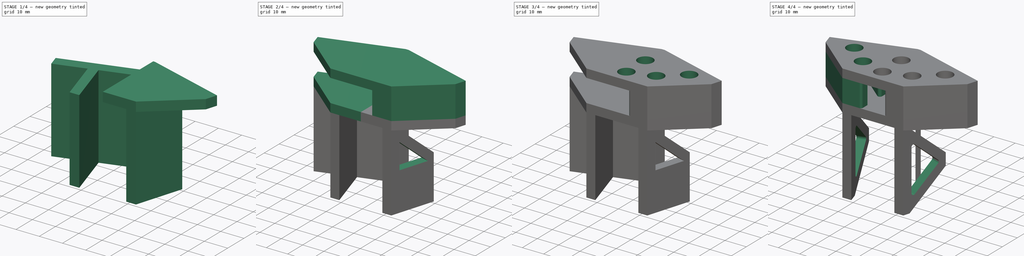
[diagram: build sequence overview — one tinted view per stage of 4, left to right]
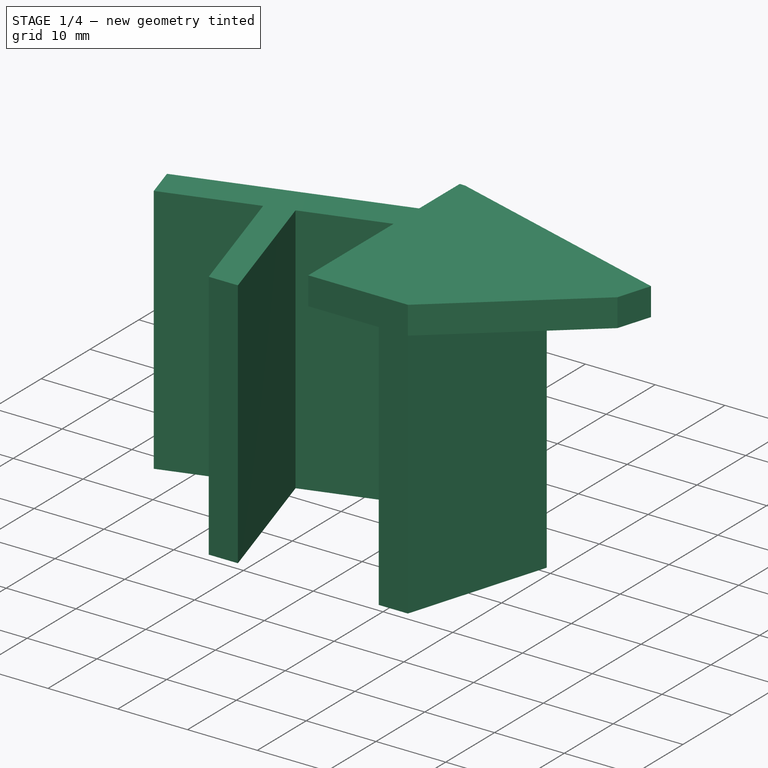
[diagram: stage 1 of 4 — iso view after this stage's code; geometry added in this stage tinted green]
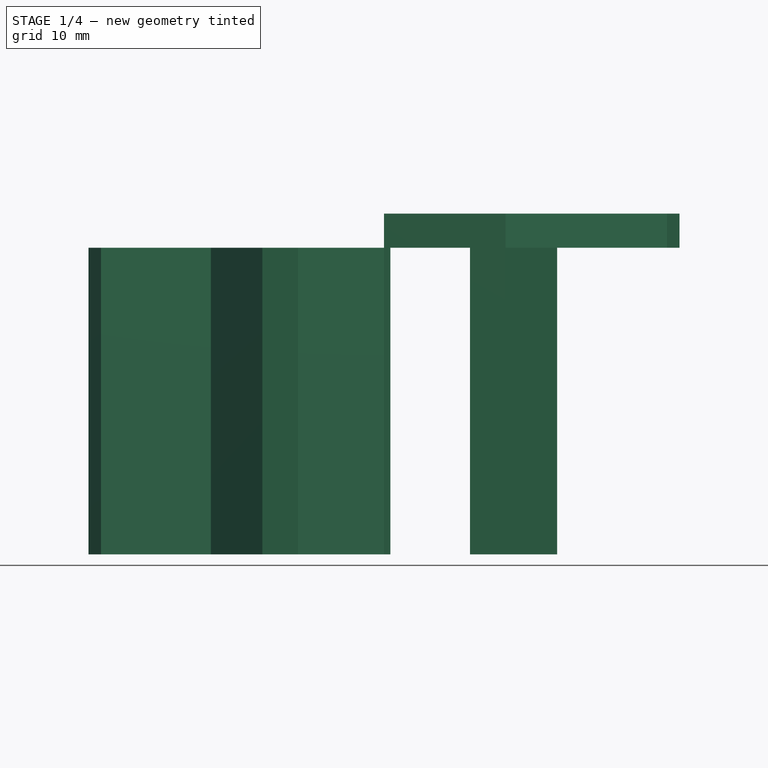
[diagram: stage 1 of 4 — front view after this stage's code; geometry added in this stage tinted green]
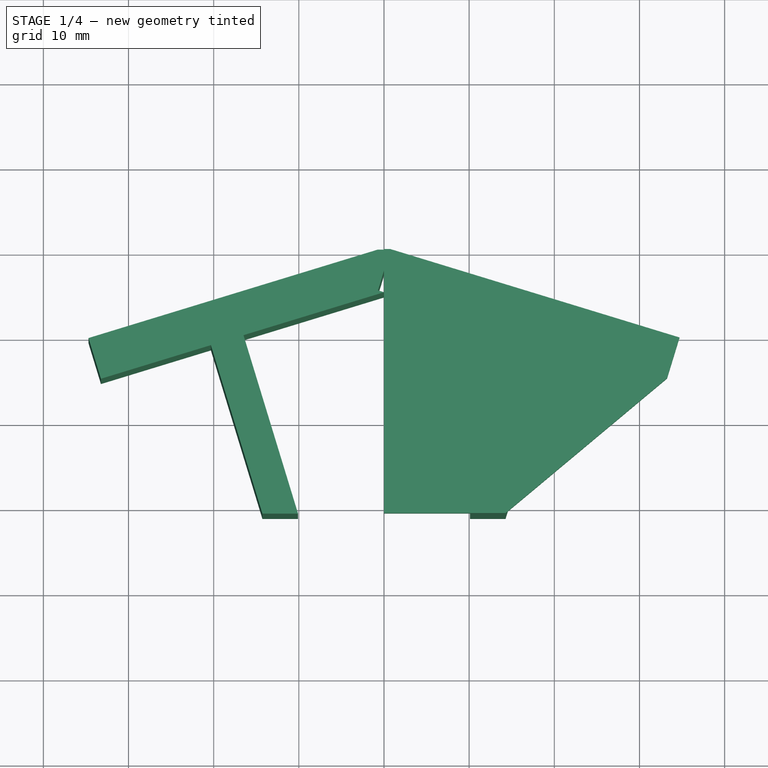
[diagram: stage 1 of 4 — top view after this stage's code; geometry added in this stage tinted green]
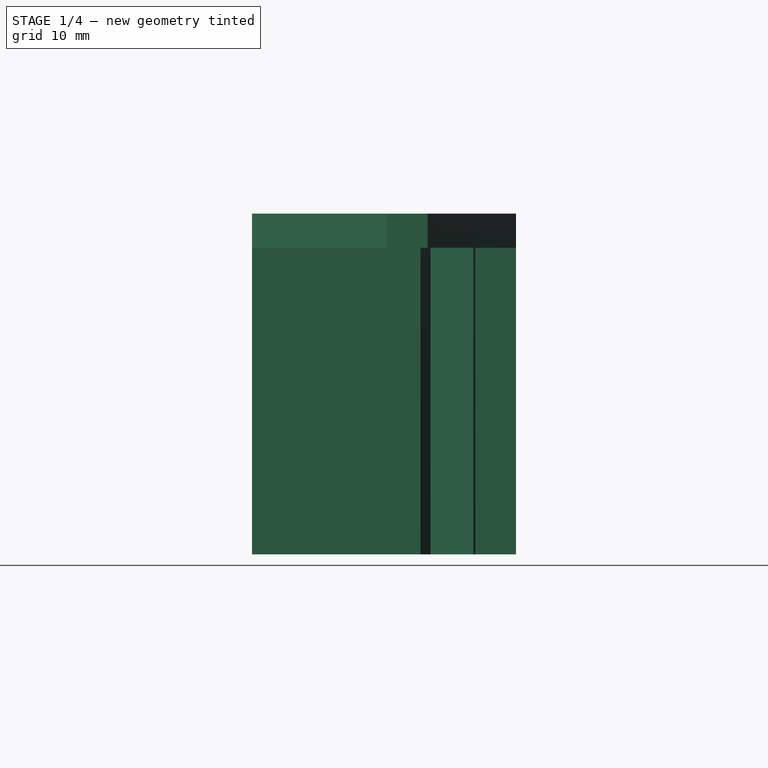
[diagram: stage 1 of 4 — right view after this stage's code; geometry added in this stage tinted green]
FCSTD DOCUMENT  (FreeCAD 0.20R)
Label: botRowRack
License: All rights reserved
LicenseURL: http://en.wikipedia.org/wiki/All_rights_reserved
objects: Sketcher::SketchObject×9, PartDesign::Mirrored×6, PartDesign::Pad×3, PartDesign::CoordinateSystem×3, PartDesign::Pocket×2, PartDesign::MultiTransform×2, PartDesign::Hole×2, PartDesign::Fillet×2, Spreadsheet::Sheet×1, PartDesign::LinearPattern×1, PartDesign::Body×1
note: 40 computed .brp shape members not serialized (recipe doc carries the construction recipe); baked Part::Feature solids carry a one-line shape summary decoded from their .brp

FEATURE [Spreadsheet::Sheet] Spreadsheet  label="props"
  cells = A1=variable; B1=unit; C1=value; D1=min value; E1=typical value; F1=max value; A2=pan angle; B2=degree; C2(panAngle)=17; D2=0; A3=cell diameter; B3=mm; C3(cellDiam)=40; A4=plate left width; B4=mm; C4(plateLeftWidth)=20; E4==cellDiam / 2 - ribThick / 2; A5=plate right (USB side) width; B5=mm; C5(plateRightWidth)=15.5; E5=15.5; A6=plate height; B6=mm; C6(plateHeight)=36; E6==cellDiam - ribThick; A7=rack thicnkess; B7=mm; C7(rackThick)=31; A8=plate thickness; B8=mm; C8(plateThick)=5; A9=rib thickness; B9=mm; C9(ribThick)=4; A11=clamp rod width; B11=mm; C11(clampWidth)==0.4 * 25.4 + 0.5; A12=clamp hole distance; B12=mm; C12(clampHoleDist)==0.5 * 25.4; A13=1/4 washer OD; B13=mm; C13(washerOd)==0.5 * 25.4 + 0.1; A14=clamp tip extent; B14=mm; C14(clampTipExt)==0.15 * 25.4 + 0.1
FEATURE [Sketcher::SketchObject] Sketch  label="plateRibBaseSk"
  FullyConstrained = true
  MapMode = 5
  Support = -> [XY_Plane]
  expr: Constraints[10] = <<props>>.plateThick
  expr: Constraints[11] = <<props>>.plateThick
  expr: Constraints[12] = 90 - <<props>>.panAngle
  expr: Constraints[24] = <<props>>.plateLeftWidth
  expr: Constraints[25] = <<props>>.plateRightWidth
  expr: Constraints[27] = <<props>>.ribThick
  expr: Constraints[28] = <<props>>.rackThick
  sketch-geometry (10):
    g0: LineSegment StartX=0 StartY=0 StartZ=0 EndX=0 EndY=-5 EndZ=0
    g1: LineSegment StartX=0 StartY=-5 StartZ=0 EndX=16.4989 EndY=-10.0442 EndZ=0
    g2: LineSegment StartX=33.2342 StartY=-15.1607 StartZ=0 EndX=34.6961 EndY=-10.3792 EndZ=0
    g3: LineSegment StartX=34.6961 StartY=-10.3792 StartZ=0 EndX=0.747255 EndY=0 EndZ=0
    g4: LineSegment StartX=0.747255 StartY=0 StartZ=0 EndX=0 EndY=0 EndZ=0
    g5: LineSegment StartX=16.4989 StartY=-10.0442 StartZ=0 EndX=10.0921 EndY=-31 EndZ=0
    g6: LineSegment StartX=10.0921 StartY=-31 StartZ=0 EndX=14.2748 EndY=-31 EndZ=0
    g7: LineSegment StartX=14.2748 StartY=-31 StartZ=0 EndX=20.3241 EndY=-11.2137 EndZ=0
    g8: LineSegment StartX=20.3241 StartY=-11.2137 StartZ=0 EndX=33.2342 EndY=-15.1607 EndZ=0
    g9: LineSegment StartX=0 StartY=-70.8502 StartZ=0 EndX=19.8734 EndY=-5.84743 EndZ=0
  constraints (29):
    c: Coincident(g-1,g0)
    c: Coincident(g0,g1)
    c: Coincident(g8,g2)
    c: Coincident(g2,g3)
    c: Coincident(g3,g4)
    c: Coincident(g4,g0)
    c: Horizontal(g4)
    c: Vertical(g0)
    c: Perpendicular(g1,g2)
    c: Parallel(g3,g1)
    c: Distance(g0) = 5
    c: Distance(g2) = 5
    c: Angle(g-2,g3) = 1.27409
    c: Coincident(g5,g6)
    c: Horizontal(g6)
    c: Coincident(g6,g7)
    c: Coincident(g1,g5)
    c: Coincident(g8,g7)
    c: Parallel(g8,g3)
    c: Perpendicular(g1,g5)
    c: Perpendicular(g8,g7)
    c: PointOnObject(g9,g-2)
    c: PointOnObject(g9,g3)
    c: Perpendicular(g3,g9)
    c: Distance(g3,g9) = 20
    c: Distance(g9,g2) = 15.5
    c: Symmetric(g1,g7,g9)
    c: Distance(g1,g7) = 4
    c: DistanceY(g5,g0) = 31
FEATURE [PartDesign::Pad] Pad  label="plateRibBase"
  Direction = (0,0,1)
  Length = 36
  Length2 = 10
  Midplane = true
  Profile = -> Sketch
  ReferenceAxis = -> Sketch [N_Axis]
  Type = 0
  expr: Length = <<props>>.plateHeight
FEATURE [Sketcher::SketchObject] Sketch001  label="plateDatum1Sk"
  ExternalGeometry = -> [Pad]
  FullyConstrained = true
  MapMode = 5
  Placement = pos=(0.0638763,0.20893,0) rot=(0.105093,0.703191,0.703191;2.93218rad)
  Support = -> [Pad]
  expr: Constraints[6] = <<props>>.plateLeftWidth
  sketch-geometry (2):
    g0: LineSegment StartX=-20.7146 StartY=0 StartZ=0 EndX=-30.7146 EndY=0 EndZ=0
    g1: LineSegment StartX=-20.7146 StartY=0 StartZ=0 EndX=-20.7146 EndY=-10 EndZ=0
  constraints (8):
    c: PointOnObject(g0,g-1)
    c: Horizontal(g0)
    c: Coincident(g1,g0)
    c: Vertical(g1)
    c: Distance(g0) = 10
    c: Distance(g1) = 10
    c: Distance(g0,g-3) = 20
    c: DistanceX(g-2,g0) = -20.7146  'plateCenterYaxisDiff'
FEATURE [PartDesign::CoordinateSystem] plateLCS1
  AttacherType = Attacher::AttachEngine3D
  MapMode = 49
  Placement = pos=(19.8734,-5.84743,0) rot=(-0.978386,0.146221,-0.146221;1.59265rad)
  Support = -> [Sketch001]
FEATURE [Sketcher::SketchObject] Sketch002  label="roofBaseSk"
  ExternalGeometry = -> [Pad]
  FullyConstrained = true
  MapMode = 5
  Placement = pos=(0,0,18) rot=(0,0,1;0rad)
  Support = -> [Pad]
  sketch-geometry (6):
    g0: LineSegment StartX=14.2748 StartY=-31 StartZ=0 EndX=33.2342 EndY=-15.1607 EndZ=0
    g1: LineSegment StartX=33.2342 StartY=-15.1607 StartZ=0 EndX=34.6961 EndY=-10.3792 EndZ=0
    g2: LineSegment StartX=34.6961 StartY=-10.3792 StartZ=0 EndX=0.747255 EndY=0 EndZ=0
    g3: LineSegment StartX=0.747255 StartY=0 StartZ=0 EndX=0 EndY=0 EndZ=0
    g4: LineSegment StartX=0 StartY=0 StartZ=0 EndX=0 EndY=-31 EndZ=0
    g5: LineSegment StartX=0 StartY=-31 StartZ=0 EndX=14.2748 EndY=-31 EndZ=0
  constraints (13):
    c: Coincident(g0,g-6)
    c: Coincident(g0,g1)
    c: Coincident(g1,g-6)
    c: Coincident(g1,g2)
    c: Coincident(g2,g-3)
    c: Coincident(g2,g3)
    c: Coincident(g3,g4)
    c: PointOnObject(g4,g-2)
    c: Coincident(g4,g5)
    c: Coincident(g5,g0)
    c: Horizontal(g5)
    c: Coincident(g0,g-5)
    c: Coincident(g3,g-4)
FEATURE [Sketcher::SketchObject] Sketch003  label="plateSlotSk"
  ExternalGeometry = -> [Pad]
  FullyConstrained = true
  MapMode = 5
  Placement = pos=(0.0638763,0.20893,0) rot=(0.105093,0.703191,0.703191;2.93218rad)
  Support = -> [Pad]
  expr: Constraints[8] = <<props>>.plateLeftWidth + <<props>>.plateRightWidth
  expr: Constraints[9] = <<props>>.plateHeight
  sketch-geometry (4):
    g0: LineSegment StartX=-36.2146 StartY=-18 StartZ=0 EndX=-0.714604 EndY=-18 EndZ=0
    g1: LineSegment StartX=-0.714604 StartY=-18 StartZ=0 EndX=-0.714604 EndY=18 EndZ=0
    g2: LineSegment StartX=-0.714604 StartY=18 StartZ=0 EndX=-36.2146 EndY=18 EndZ=0
    g3: LineSegment StartX=-36.2146 StartY=18 StartZ=0 EndX=-36.2146 EndY=-18 EndZ=0
  constraints (11):
    c: Coincident(g0,g1)
    c: Coincident(g1,g2)
    c: Coincident(g2,g3)
    c: Coincident(g3,g0)
    c: Horizontal(g0)
    c: Horizontal(g2)
    c: Vertical(g3)
    c: Symmetric(g1,g0,g-1)
    c: Distance(g2) = 35.5
    c: Distance(g3) = 36
    c: PointOnObject(g1,g-3)
FEATURE [PartDesign::Mirrored] Mirrored  label="baseMirror"
  BaseFeature = -> Pad
  MirrorPlane = -> YZ_Plane
  Originals = -> [Pad]
FEATURE [PartDesign::Pad] Pad001  label="roofBase"
  BaseFeature = -> Mirrored
  Direction = (0,0,1)
  Length = 4
  Length2 = 10
  Profile = -> Sketch002
  ReferenceAxis = -> Sketch002 [N_Axis]
  Type = 0
  expr: Length = <<props>>.ribThick
FEATURE [PartDesign::Pocket] Pocket  label="plateSlot"
  BaseFeature = -> Pad001
  Direction = (-0.292372,-0.956305,0)
  Length = 5
  Length2 = 5
  Profile = -> Sketch003
  ReferenceAxis = -> Sketch003 [N_Axis]
  Type = 0
  expr: Length = <<props>>.plateThick
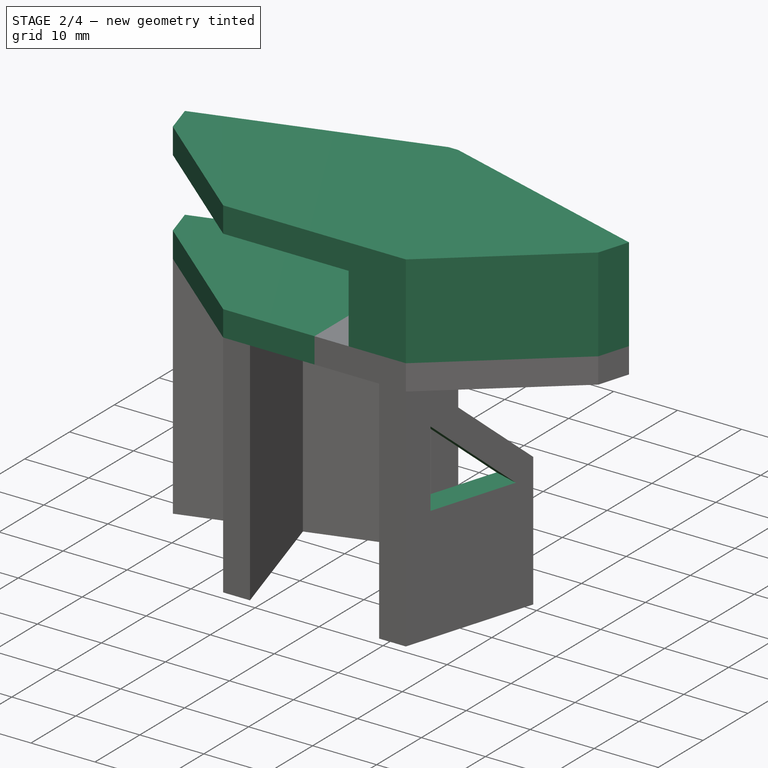
[diagram: stage 2 of 4 — iso view after this stage's code; geometry added in this stage tinted green]
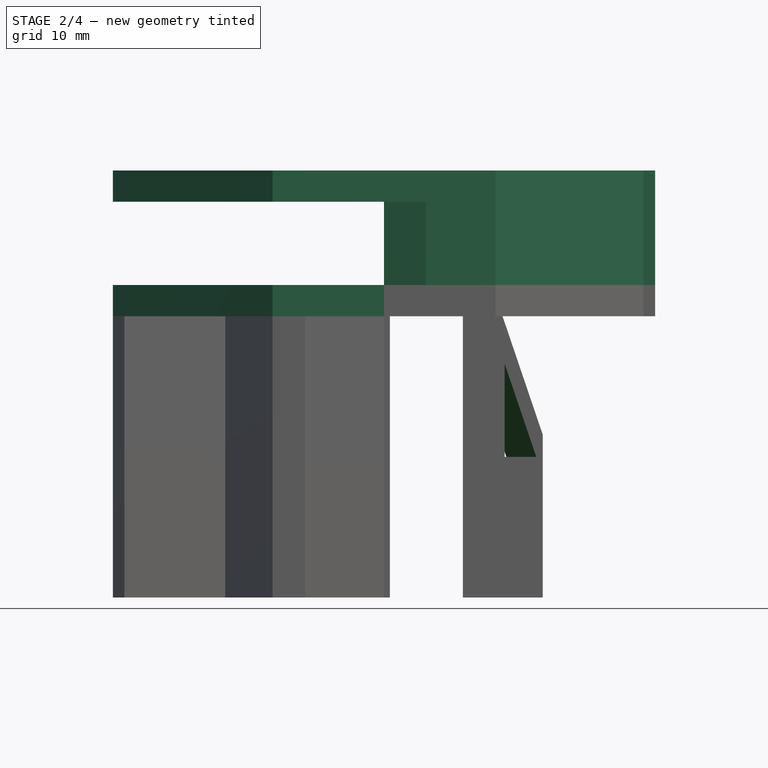
[diagram: stage 2 of 4 — front view after this stage's code; geometry added in this stage tinted green]
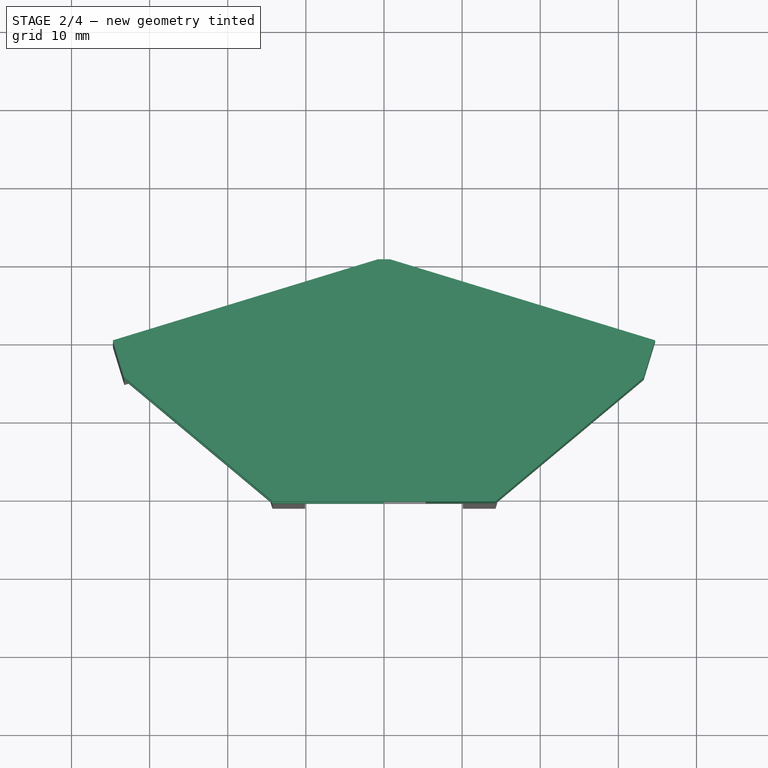
[diagram: stage 2 of 4 — top view after this stage's code; geometry added in this stage tinted green]
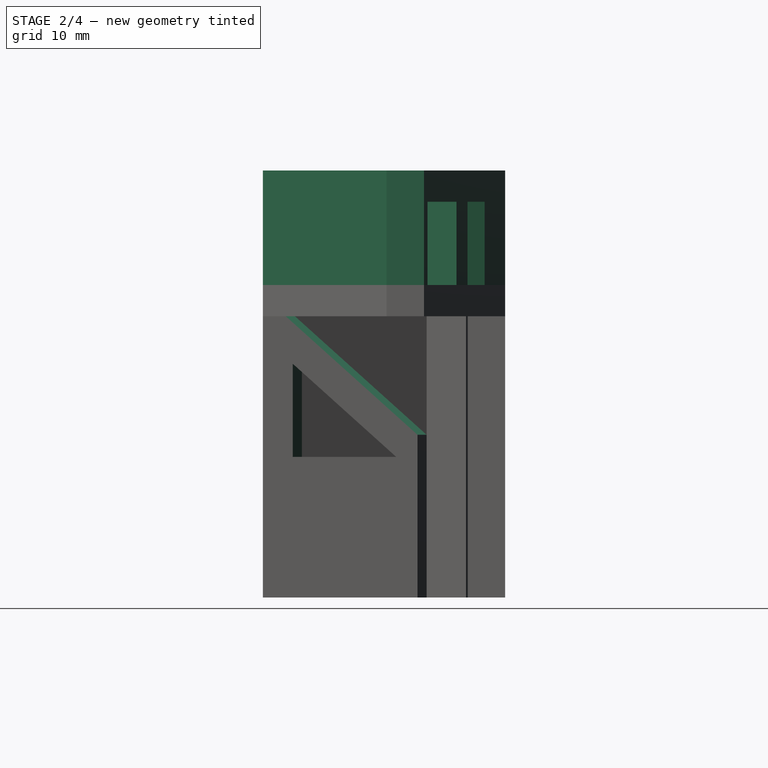
[diagram: stage 2 of 4 — right view after this stage's code; geometry added in this stage tinted green]
FEATURE [Sketcher::SketchObject] Sketch004  label="ribLightSk"
  ExternalGeometry = -> [Pocket,Pad]
  FullyConstrained = true
  MapMode = 5
  Placement = pos=(21.7221,-6.64111,0) rot=(0.690875,0.51122,0.51122;1.93244rad)
  Support = -> [Pad]
  expr: Constraints[10] = <<props>>.ribThick / 2
  expr: Constraints[16] = <<props>>.ribThick / sqrt(2)
  expr: Constraints[19] = <<props>>.ribThick
  expr: Constraints[8] = <<props>>.ribThick / 2
  sketch-geometry (7):
    g0: LineSegment StartX=-25.4719 StartY=18 StartZ=0 EndX=-4.56139 EndY=0 EndZ=0
    g1: LineSegment StartX=-4.78152 StartY=18 StartZ=0 EndX=-22.4063 EndY=18 EndZ=0
    g2: LineSegment StartX=-22.4063 StartY=18 StartZ=0 EndX=-4.78152 EndY=2.82843 EndZ=0
    g3: LineSegment StartX=-4.78152 StartY=2.82843 StartZ=0 EndX=-4.78152 EndY=18 EndZ=0
    g4: LineSegment StartX=-21.4719 StartY=0 StartZ=0 EndX=-21.4719 EndY=11.9178 EndZ=0
    g5: LineSegment StartX=-21.4719 StartY=11.9178 StartZ=0 EndX=-7.62703 EndY=0 EndZ=0
    g6: LineSegment StartX=-21.4719 StartY=0 StartZ=0 EndX=-7.62703 EndY=0 EndZ=0
  constraints (20):
    c: PointOnObject(g0,g-1)
    c: Horizontal(g1)
    c: Coincident(g1,g2)
    c: Coincident(g2,g3)
    c: Coincident(g3,g1)
    c: Parallel(g2,g0)
    c: Vertical(g4)
    c: Coincident(g4,g5)
    c: Distance(g2,g0) = 2
    c: Parallel(g5,g0)
    c: Distance(g5,g0) = 2
    c: PointOnObject(g5,g-1)
    c: Coincident(g6,g4)
    c: Coincident(g6,g5)
    c: Horizontal(g6)
    c: Vertical(g3)
    c: DistanceY(g-1,g2) = 2.82843
    c: Coincident(g0,g-4)
    c: Coincident(g1,g-5)
    c: Distance(g4,g-4) = 4
FEATURE [PartDesign::Pocket] Pocket001  label="ribLight"
  BaseFeature = -> Pocket
  Direction = (-0.956305,0.292372,0)
  Length = 5
  Length2 = 5
  Profile = -> Sketch004
  ReferenceAxis = -> Sketch004 [N_Axis]
  Type = 2
FEATURE [PartDesign::CoordinateSystem] rowLCS
  AttacherType = Attacher::AttachEngine3D
  Support = -> [Origin]
FEATURE [Sketcher::SketchObject] Sketch007  label="plateDatum2Sk"
  FullyConstrained = true
  MapMode = 5
  Placement = pos=(-0.0638763,0.20893,0) rot=(-0.105093,0.703191,0.703191;3.35101rad)
  Support = -> [Mirrored]
  expr: Constraints[6] = -<<plateDatum1Sk>>.Constraints.plateCenterYaxisDiff
  sketch-geometry (2):
    g0: LineSegment StartX=20.7146 StartY=0 StartZ=0 EndX=30.7146 EndY=0 EndZ=0
    g1: LineSegment StartX=20.7146 StartY=0 StartZ=0 EndX=20.7146 EndY=10 EndZ=0
  constraints (7):
    c: PointOnObject(g0,g-1)
    c: PointOnObject(g0,g-1)
    c: Coincident(g1,g0)
    c: Vertical(g1)
    c: Distance(g0) = 10
    c: Distance(g1) = 10
    c: DistanceX(g-2,g0) = 20.7146
FEATURE [PartDesign::CoordinateSystem] plateLCS2
  AttacherType = Attacher::AttachEngine3D
  MapMode = 49
  Placement = pos=(-19.8734,-5.84743,6e-16) rot=(-0.105093,0.703191,0.703191;3.35101rad)
  Support = -> [Sketch007]
FEATURE [Sketcher::SketchObject] Sketch008  label="clamRibSk"
  ExternalGeometry = -> [Pad001]
  FullyConstrained = true
  MapMode = 5
  Placement = pos=(0,0,22) rot=(0,0,1;0rad)
  Support = -> [Pad001]
  expr: Constraints[11] = <<props>>.ribThick
  expr: Constraints[12] = <<props>>.clampWidth / 2
  expr: Constraints[22] = <<props>>.plateThick
  expr: Constraints[23] = <<props>>.clampWidth
  expr: Constraints[33] = <<props>>.ribThick
  expr: Constraints[34] = <<props>>.ribThick
  expr: Constraints[41] = <<props>>.ribThick
  sketch-geometry (16):
    g0: LineSegment StartX=34.6961 StartY=-10.3792 StartZ=0 EndX=33.2485 EndY=-9.93661 EndZ=0
    g1: LineSegment StartX=33.2485 StartY=-9.93661 StartZ=0 EndX=12.8238 EndY=-27 EndZ=0
    g2: LineSegment StartX=34.6961 StartY=-10.3792 StartZ=0 EndX=33.2342 EndY=-15.1607 EndZ=0
    g3: LineSegment StartX=33.2342 StartY=-15.1607 StartZ=0 EndX=14.2748 EndY=-31 EndZ=0
    g4: LineSegment StartX=14.2748 StartY=-31 StartZ=0 EndX=5.33 EndY=-31 EndZ=0
    g5: LineSegment StartX=5.33 StartY=-31 StartZ=0 EndX=5.33 EndY=-27 EndZ=0
    g6: LineSegment StartX=5.33 StartY=-6.62954 StartZ=0 EndX=0 EndY=-5 EndZ=0
    g7: LineSegment StartX=0 StartY=-5 StartZ=0 EndX=0 EndY=0 EndZ=0
    g8: LineSegment StartX=0 StartY=0 StartZ=0 EndX=0.747255 EndY=0 EndZ=0
    g9: LineSegment StartX=0.747255 StartY=0 StartZ=0 EndX=9.33 EndY=-2.62401 EndZ=0
    g10: LineSegment StartX=21.0762 StartY=-6.21518 StartZ=0 EndX=5.33 EndY=-19.37 EndZ=0
    g11: LineSegment StartX=9.33 StartY=-2.62401 StartZ=0 EndX=9.33 EndY=-10.8161 EndZ=0
    g12: LineSegment StartX=9.33 StartY=-10.8161 StartZ=0 EndX=16.5087 EndY=-4.81876 EndZ=0
    g13: LineSegment StartX=16.5087 StartY=-4.81876 StartZ=0 EndX=21.0762 EndY=-6.21518 EndZ=0
    g14: LineSegment StartX=12.8238 StartY=-27 StartZ=0 EndX=5.33 EndY=-27 EndZ=0
    g15: LineSegment StartX=5.33 StartY=-19.37 StartZ=0 EndX=5.33 EndY=-6.62954 EndZ=0
  constraints (43):
    c: PointOnObject(g0,g-3)
    c: Coincident(g0,g1)
    c: Coincident(g2,g0)
    c: Coincident(g2,g3)
    c: Coincident(g3,g-4)
    c: Coincident(g3,g4)
    c: Horizontal(g4)
    c: Coincident(g4,g5)
    c: Vertical(g5)
    c: Parallel(g1,g3)
    c: Coincident(g2,g-5)
    c: Distance(g2,g1) = 4
    c: DistanceX(g-2,g4) = 5.33
    c: Coincident(g15,g6)
    c: PointOnObject(g6,g-2)
    c: Coincident(g6,g7)
    c: Coincident(g7,g-1)
    c: Coincident(g7,g8)
    c: Coincident(g8,g-3)
    c: Coincident(g8,g9)
    c: PointOnObject(g13,g-3)
    c: Parallel(g6,g-3)
    c: Distance(g6,g-3) = 5
    c: Distance(g13,g1) = 10.66
    c: Coincident(g10,g13)
    c: Parallel(g10,g1)
    c: Vertical(g11)
    c: Coincident(g11,g12)
    c: Parallel(g12,g10)
    c: Coincident(g9,g11)
    c: Coincident(g13,g12)
    c: PointOnObject(g9,g-3)
    c: PointOnObject(g12,g-3)
    c: DistanceX(g15,g9) = 4
    c: Distance(g12,g10) = 4
    c: Coincident(g14,g1)
    c: Horizontal(g14)
    c: Coincident(g5,g14)
    c: Coincident(g15,g10)
    c: Vertical(g15)
    c: Vertical(g10,g4)
    c: Distance(g5) = 4
    c: Coincident(g0,g-5)
FEATURE [PartDesign::Pad] Pad002  label="clampRib"
  BaseFeature = -> Pocket001
  Direction = (0,0,1)
  Length = 10.66
  Length2 = 10
  Profile = -> Sketch008
  ReferenceAxis = -> Sketch008 [N_Axis]
  Type = 0
  expr: Length = <<props>>.clampWidth
FEATURE [PartDesign::Mirrored] Mirrored001
  MirrorPlane = -> YZ_Plane
FEATURE [PartDesign::LinearPattern] LinearPattern
  Direction = -> Z_Axis
  Length = 14.66
  Occurrences = 2
  expr: Length = <<props>>.clampWidth + <<props>>.ribThick
FEATURE [PartDesign::MultiTransform] MultiTransform  label="roofMulti"
  BaseFeature = -> Pad002
  Originals = -> [Pad001]
  Transformations = -> [Mirrored001,LinearPattern]
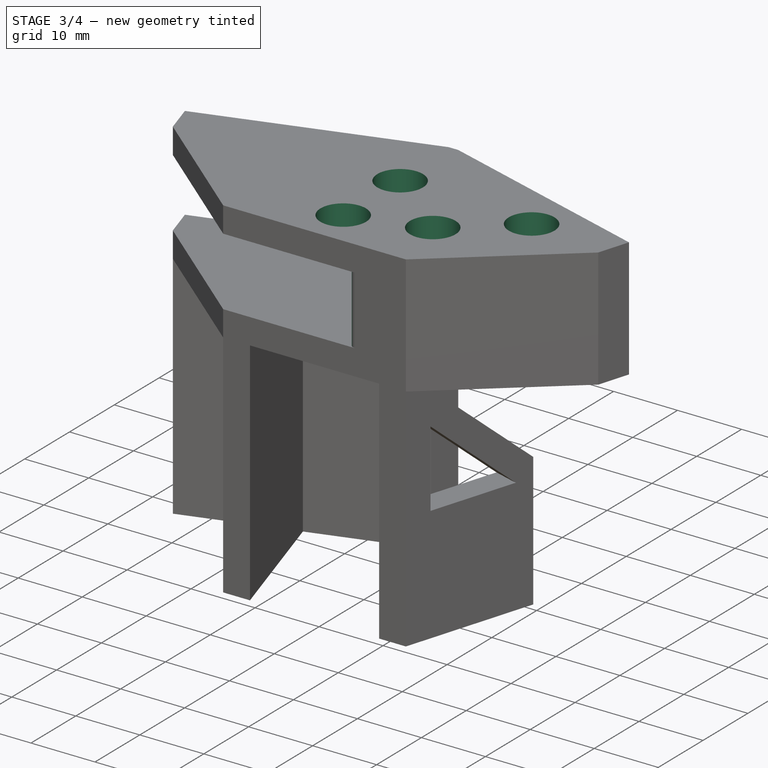
[diagram: stage 3 of 4 — iso view after this stage's code; geometry added in this stage tinted green]
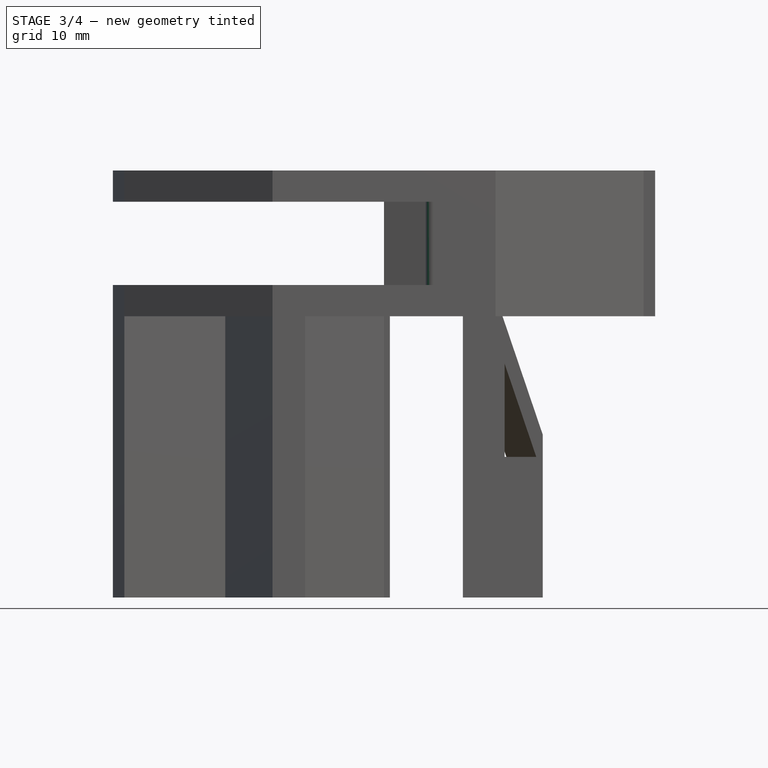
[diagram: stage 3 of 4 — front view after this stage's code; geometry added in this stage tinted green]
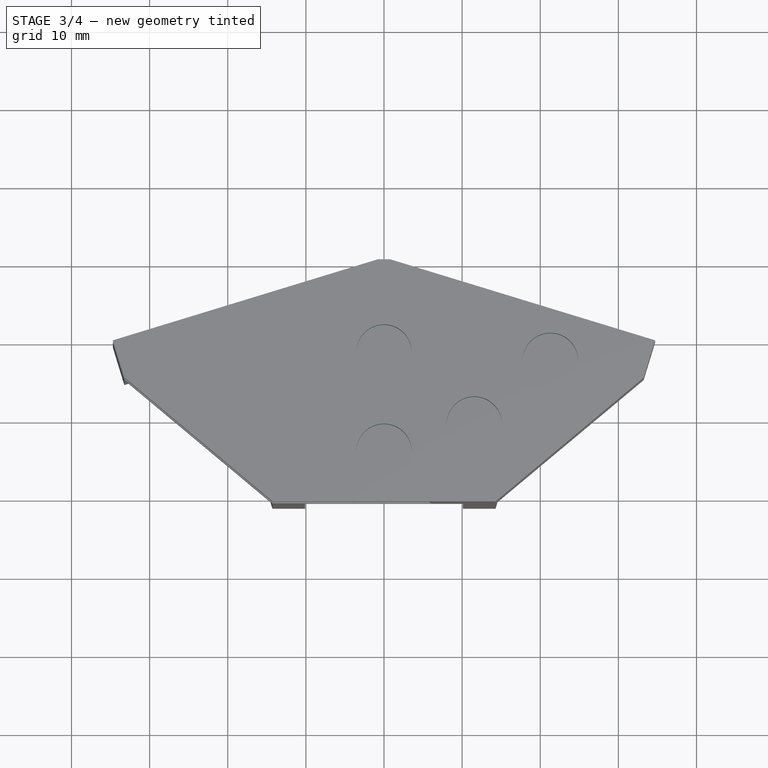
[diagram: stage 3 of 4 — top view after this stage's code; geometry added in this stage tinted green]
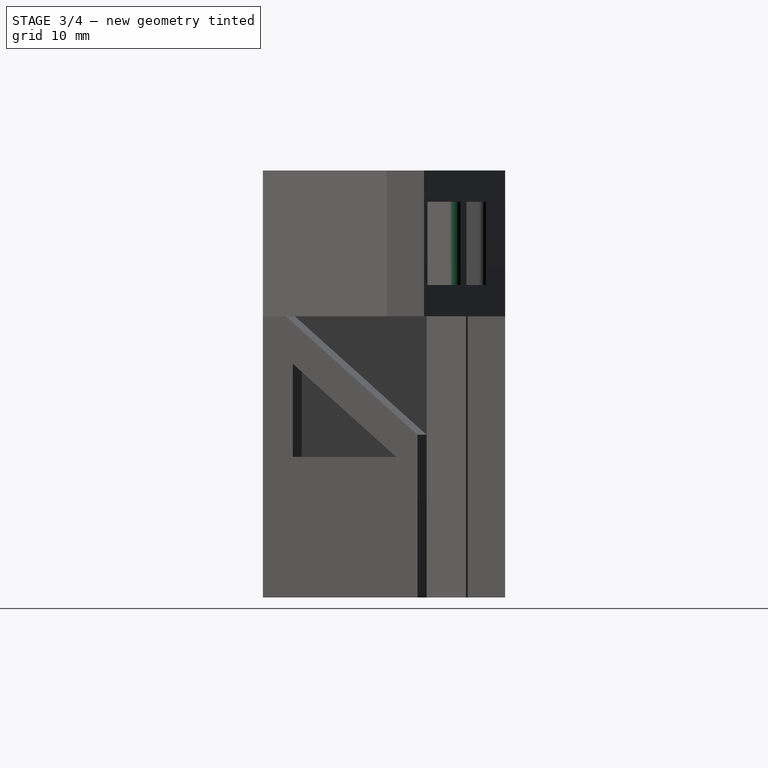
[diagram: stage 3 of 4 — right view after this stage's code; geometry added in this stage tinted green]
FEATURE [Sketcher::SketchObject] Sketch009  label="centerClampHoleSk"
  ExternalGeometry = -> [MultiTransform]
  FullyConstrained = true
  MapMode = 5
  Placement = pos=(0,0,36.66) rot=(0,0,1;0rad)
  Support = -> [MultiTransform]
  expr: Constraints[10] = <<props>>.washerOd / 2
  expr: Constraints[2] = <<props>>.clampHoleDist
  sketch-geometry (4):
    g0: Circle CenterX=0 CenterY=-11.9 CenterZ=0 NormalX=0 NormalY=0 NormalZ=1 AngleXU=0 Radius=1
    g1: Circle CenterX=0 CenterY=-24.6 CenterZ=0 NormalX=0 NormalY=0 NormalZ=1 AngleXU=0 Radius=1
    g2: LineSegment StartX=0 StartY=-11.9 StartZ=0 EndX=1.92922 EndY=-5.58982 EndZ=0
    g3: LineSegment StartX=0 StartY=-24.6 StartZ=0 EndX=-4.9e-15 EndY=-31 EndZ=0
  constraints (12):
    c: PointOnObject(g0,g-2)
    c: PointOnObject(g1,g-2)
    c: Distance(g0,g1) = 12.7
    c: Diameter(g1) = 2
    c: Diameter(g0) = 2
    c: Coincident(g2,g0)
    c: PointOnObject(g2,g-3)
    c: Coincident(g3,g1)
    c: Coincident(g3,g-4)
    c: Perpendicular(g-3,g2)
    c: Distance(g3) = 6.4
    c: Distance(g2) = 6.5985
FEATURE [Sketcher::SketchObject] Sketch010  label="sideClampHoleSk"
  ExternalGeometry = -> [MultiTransform]
  FullyConstrained = true
  MapMode = 5
  Placement = pos=(0,0,36.66) rot=(0,0,1;0rad)
  Support = -> [MultiTransform]
  expr: Constraints[0] = <<props>>.clampWidth / 2
  expr: Constraints[1] = <<props>>.clampWidth / 2
  expr: Constraints[2] = <<props>>.clampHoleDist
  expr: Constraints[3] = <<props>>.washerOd / 2
  sketch-geometry (2):
    g0: Circle CenterX=11.5514 CenterY=-21.1177 CenterZ=0 NormalX=0 NormalY=0 NormalZ=1 AngleXU=0 Radius=1
    g1: Circle CenterX=21.2977 CenterY=-12.9753 CenterZ=0 NormalX=0 NormalY=0 NormalZ=1 AngleXU=0 Radius=1
  constraints (7):
    c: Distance(g1,g-3) = 5.33
    c: Distance(g0,g-3) = 5.33
    c: Distance(g0,g1) = 12.7
    c: Distance(g1,g-4) = 6.4
    c: DistanceX(g-2,g0) = 11.5514
    c: Diameter(g0) = 2
    c: Diameter(g1) = 2
FEATURE [PartDesign::Hole] Hole  label="centerClampHole"
  BaseFeature = -> MultiTransform
  CustomThreadClearance = 0
  Depth = 4
  DepthType = 0
  Diameter = 7.1
  DrillForDepth = false
  DrillPoint = 1
  DrillPointAngle = 118
  HoleCutCountersinkAngle = 90
  HoleCutCustomValues = false
  HoleCutDepth = 0
  HoleCutDiameter = 6.1
  HoleCutType = 0
  ModelThread = false
  Profile = -> Sketch009
  Tapered = false
  TaperedAngle = 90
  ThreadClass = 0
  ThreadDepth = 4
  ThreadDepthType = 0
  ThreadDirection = 0
  ThreadFit = 0
  ThreadSize = 10
  ThreadType = 4
  Threaded = false
  UseCustomThreadClearance = false
  expr: Depth = <<props>>.ribThick
FEATURE [PartDesign::Hole] Hole001  label="sideClampHole"
  BaseFeature = -> Hole
  CustomThreadClearance = 0
  Depth = 4
  DepthType = 0
  Diameter = 7.1
  DrillForDepth = false
  DrillPoint = 1
  DrillPointAngle = 118
  HoleCutCountersinkAngle = 90
  HoleCutCustomValues = false
  HoleCutDepth = 0
  HoleCutDiameter = 6.1
  HoleCutType = 0
  ModelThread = false
  Profile = -> Sketch010
  Tapered = false
  TaperedAngle = 90
  ThreadClass = 0
  ThreadDepth = 4
  ThreadDepthType = 0
  ThreadDirection = 0
  ThreadFit = 0
  ThreadSize = 10
  ThreadType = 4
  Threaded = false
  UseCustomThreadClearance = false
  expr: Depth = <<props>>.ribThick
FEATURE [PartDesign::Fillet] Fillet  label="clampRibFillet"
  Base = -> Hole001 [Edge117,Edge157,Edge116,Edge122,Edge130,Edge97]
  BaseFeature = -> Hole001
  Radius = 1
  SupportTransform = false
  UseAllEdges = false
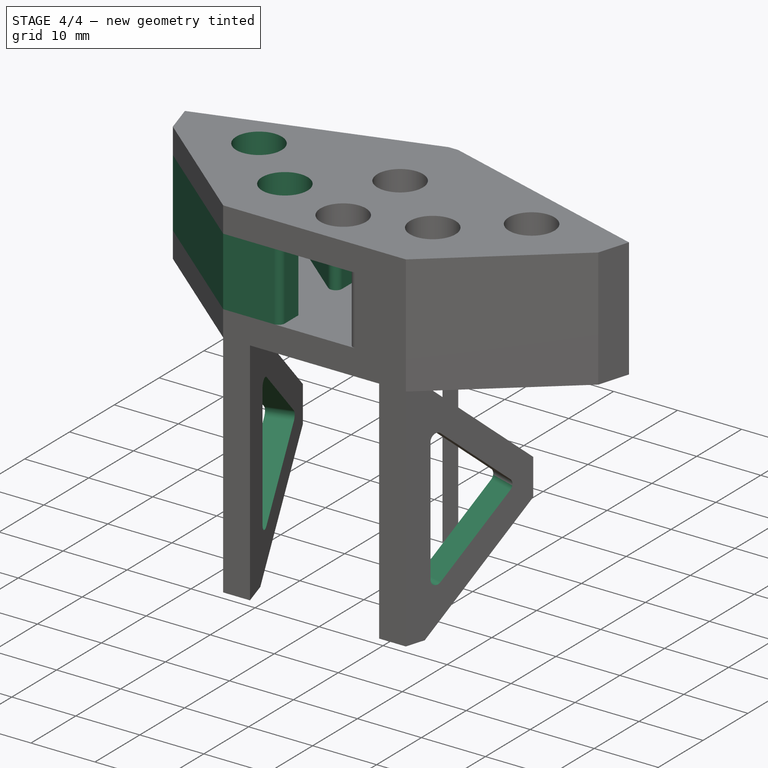
[diagram: stage 4 of 4 — iso view after this stage's code; geometry added in this stage tinted green]
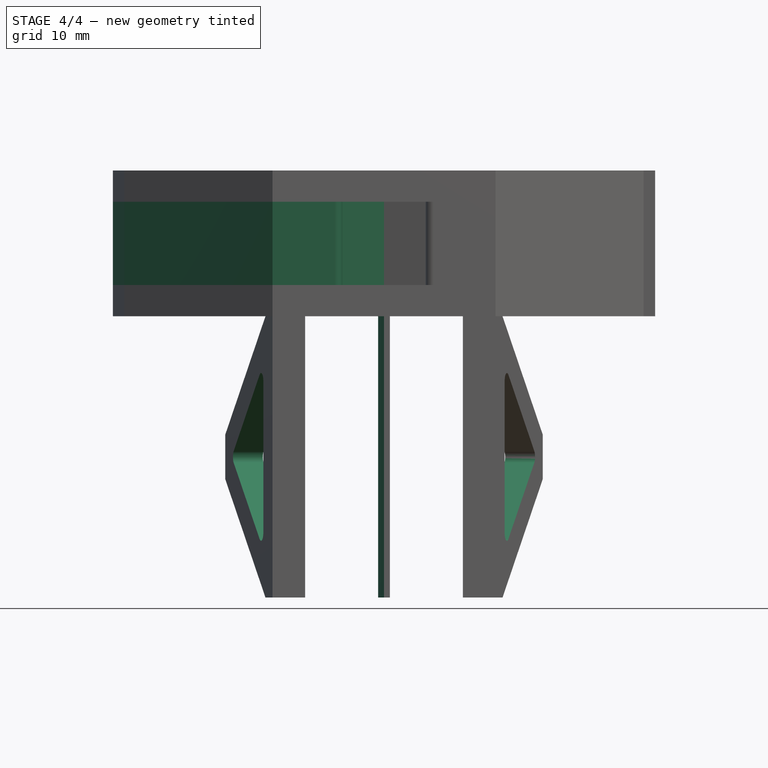
[diagram: stage 4 of 4 — front view after this stage's code; geometry added in this stage tinted green]
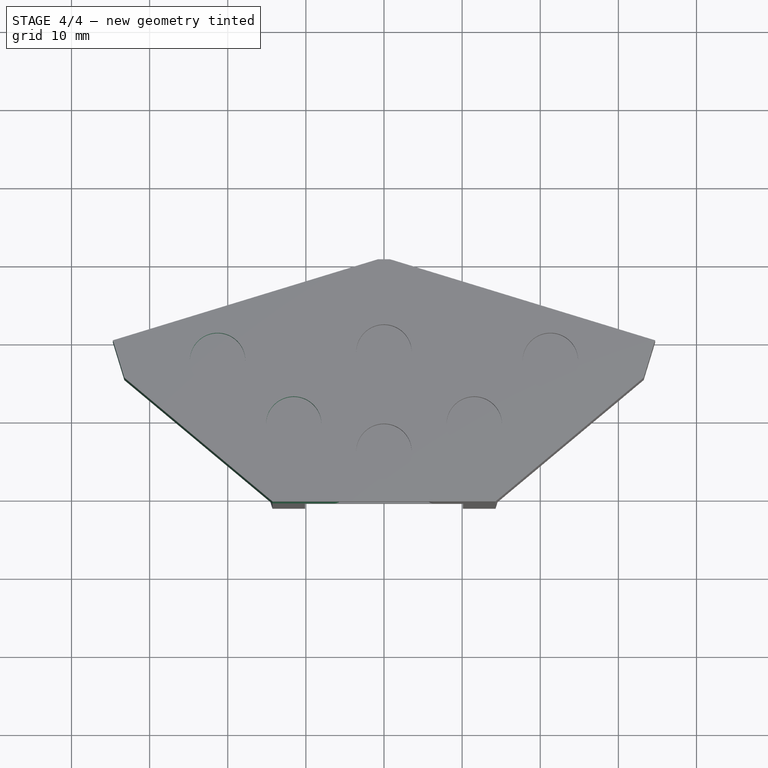
[diagram: stage 4 of 4 — top view after this stage's code; geometry added in this stage tinted green]
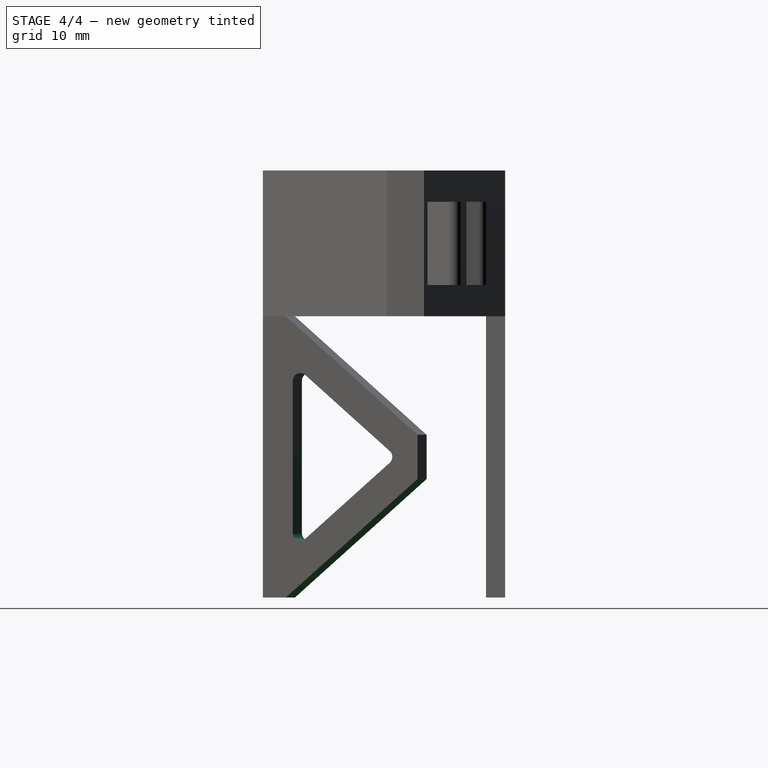
[diagram: stage 4 of 4 — right view after this stage's code; geometry added in this stage tinted green]
FEATURE [PartDesign::Mirrored] Mirrored003  label="plateSlotMirror"
  BaseFeature = -> Fillet
  MirrorPlane = -> YZ_Plane
  Originals = -> [Pocket]
FEATURE [PartDesign::Mirrored] Mirrored004
  MirrorPlane = -> XY_Plane
FEATURE [PartDesign::Mirrored] Mirrored005
  MirrorPlane = -> YZ_Plane
FEATURE [PartDesign::MultiTransform] MultiTransform001  label="ribLightMulti"
  BaseFeature = -> Mirrored003
  Originals = -> [Pocket001]
  Transformations = -> [Mirrored004,Mirrored005]
FEATURE [PartDesign::Mirrored] Mirrored002  label="plateClampMirror"
  BaseFeature = -> MultiTransform001
  MirrorPlane = -> YZ_Plane
  Originals = -> [Pad002,Hole001,Fillet]
FEATURE [PartDesign::Fillet] Fillet001  label="postFillet"
  Base = -> Mirrored002 [Edge323,Edge316,Edge324,Edge313,Edge326,Edge315]
  BaseFeature = -> Mirrored002
  Radius = 1
  SupportTransform = false
  UseAllEdges = false
FEATURE [PartDesign::Body] Body  label="dualCamRow"
  Group = -> [rowLCS,Sketch,Pad,Sketch001,plateLCS1,Mirrored,Sketch007,plateLCS2,Sketch002,Pad001,Sketch008,Sketch003,Pocket,Sketch004,Pocket001,Pad002,MultiTransform,Mirrored001,LinearPattern,Sketch009,Sketch010,Hole,Hole001,Fillet,Mirrored003,MultiTransform001,Mirrored002,Mirrored004,Mirrored005,Fillet001]
  Origin = -> Origin
  Tip = -> Fillet001
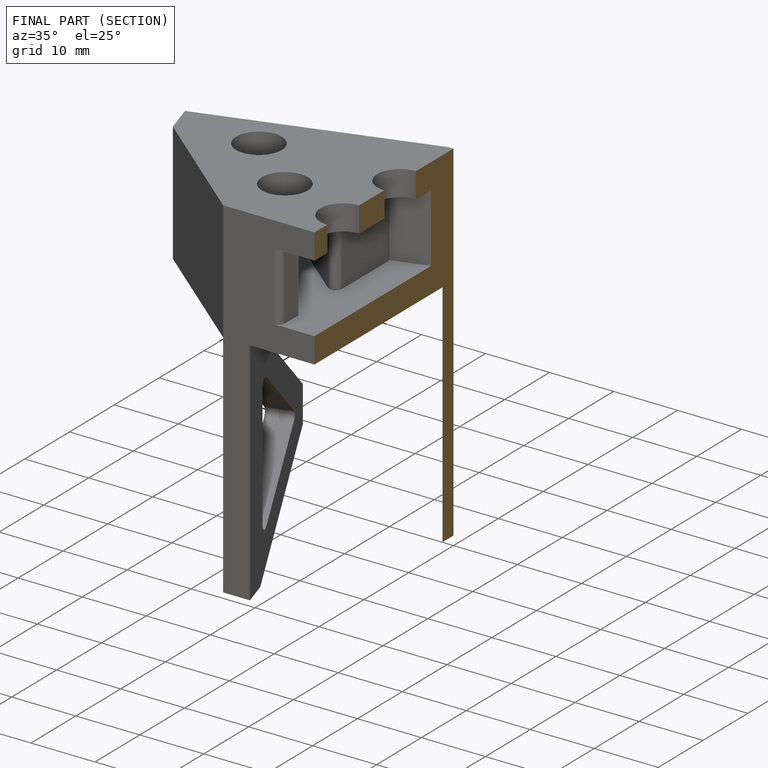
[diagram: finished part — half-section view (interior)]
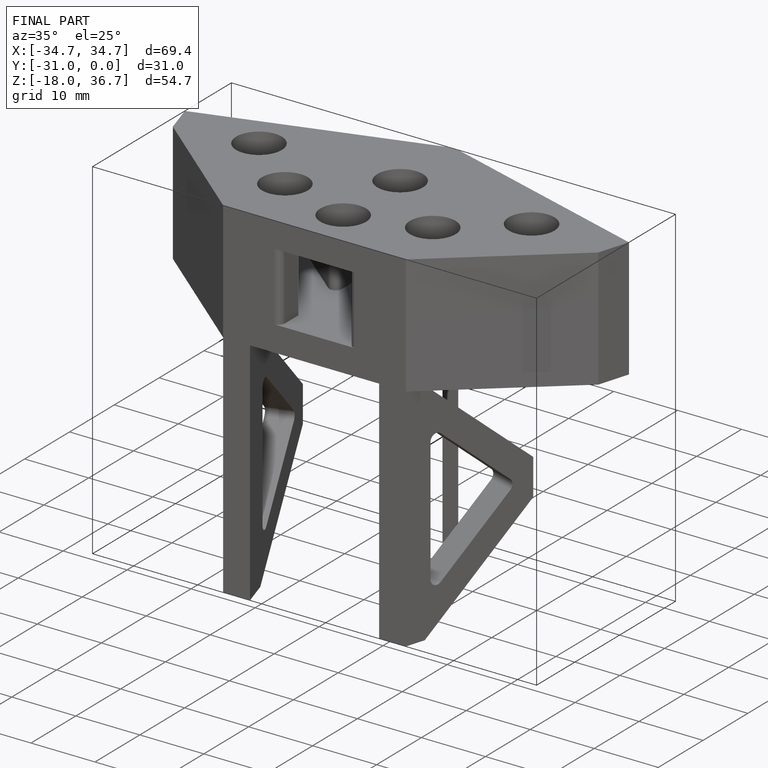
[diagram: finished part — iso view with bounding-box wireframe]
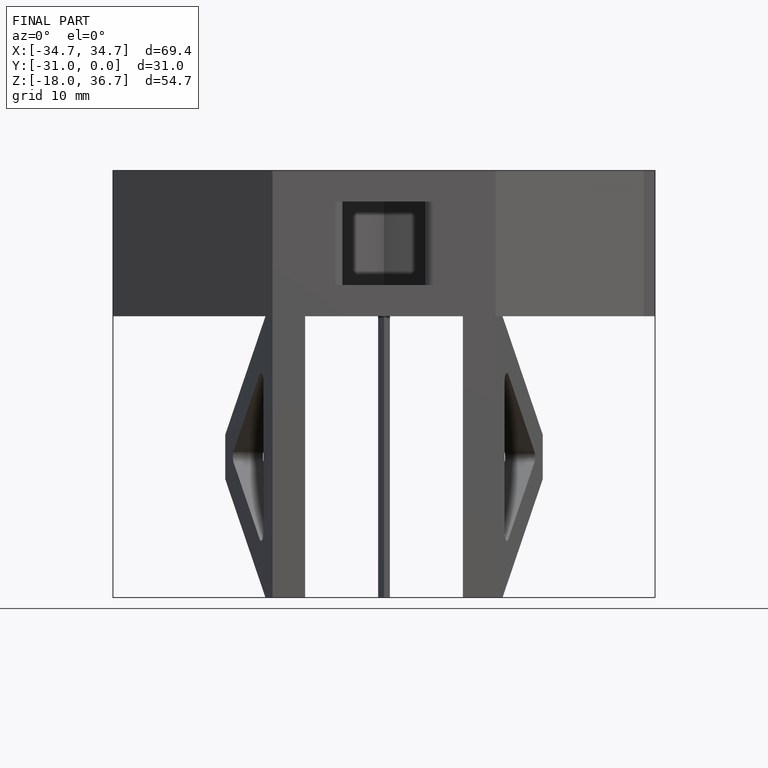
[diagram: finished part — front view with bounding-box wireframe]
